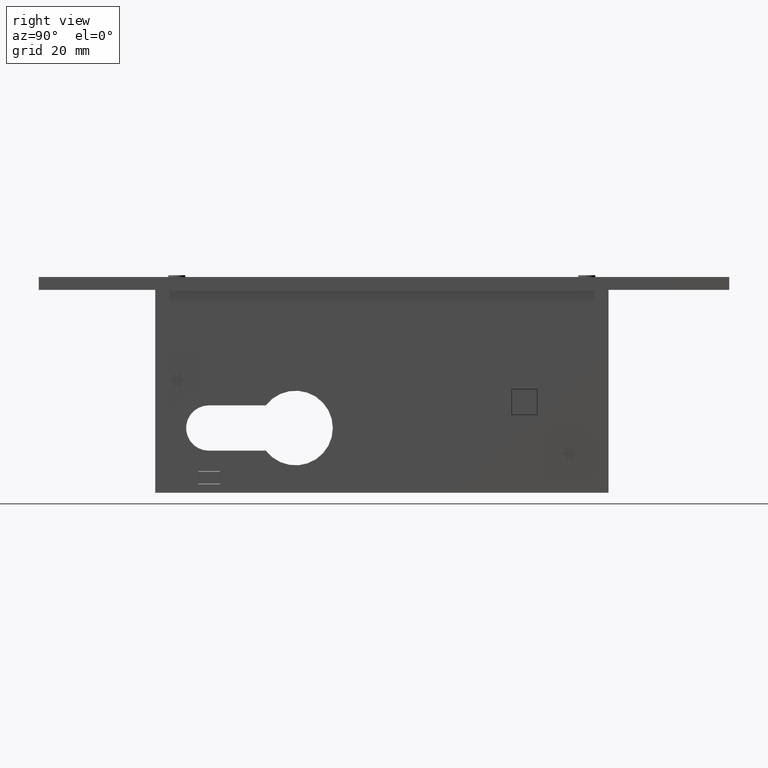
[diagram: clean part render]
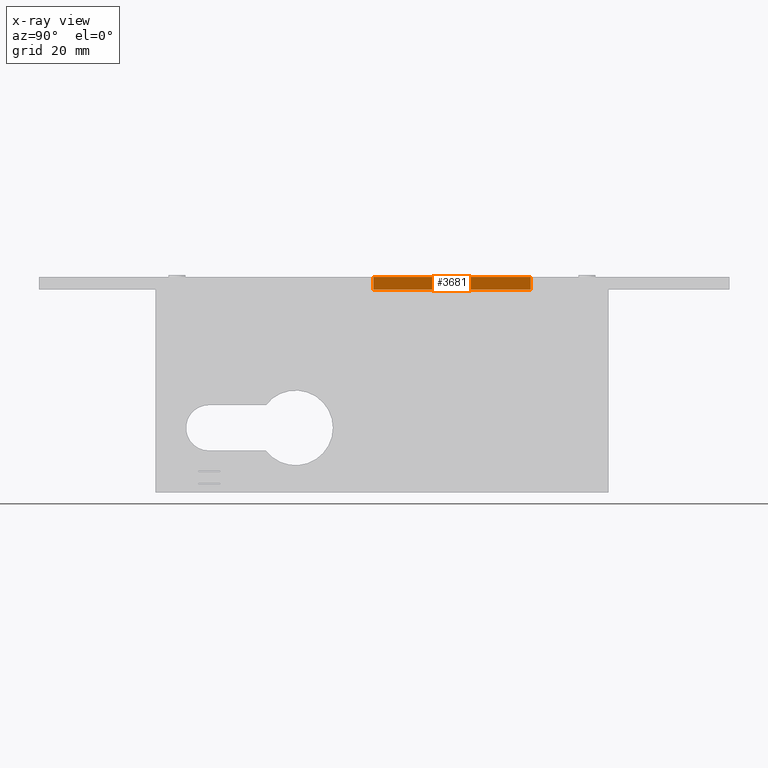
[diagram: x-ray — body ghosted, one internal face saturated and labeled with its STEP entity id]
A machine part, right view, then the same camera in x-ray: the body is ghosted and one INTERNAL B-rep face — a face not visible from any outside direction — is saturated and labeled: STEP entity #3681.
In plain terms, the highlighted planar face has unit normal (1, 0, 0).
Its self-contained STEP definition (entity closure, byte-faithful):
#24 = DIRECTION ( 'NONE',  ( -0.000000000000000000, -0.000000000000000000, 1.000000000000000000 ) ) ;
#698 = FACE_OUTER_BOUND ( 'NONE', #15840, .T. ) ;
#1956 = DIRECTION ( 'NONE',  ( -1.188166764367676342E-16, 1.000000000000000000, 0.000000000000000000 ) ) ;
#2205 = EDGE_CURVE ( 'NONE', #7039, #9274, #14113, .T. ) ;
#2383 = VECTOR ( 'NONE', #3721, 1000.000000000000000 ) ;
#2692 = VERTEX_POINT ( 'NONE', #11416 ) ;
#3263 = VECTOR ( 'NONE', #6493, 1000.000000000000000 ) ;
#3525 = VERTEX_POINT ( 'NONE', #8354 ) ;
#3681 = ADVANCED_FACE ( 'NONE', ( #698 ), #15326, .F. ) ;
#3721 = DIRECTION ( 'NONE',  ( -1.188166764367676342E-16, 1.000000000000000000, -0.000000000000000000 ) ) ;
#4442 = ORIENTED_EDGE ( 'NONE', *, *, #2205, .F. ) ;
#4466 = CARTESIAN_POINT ( 'NONE',  ( 4.999999999999970690, 33.99999999999998579, 3.000000000000000000 ) ) ;
#5079 = CARTESIAN_POINT ( 'NONE',  ( 4.999999999999975131, 5.940833821838352621E-16, 0.000000000000000000 ) ) ;
#5528 = LINE ( 'NONE', #9358, #13434 ) ;
#5637 = ORIENTED_EDGE ( 'NONE', *, *, #12313, .T. ) ;
#5672 = ORIENTED_EDGE ( 'NONE', *, *, #11206, .F. ) ;
#6493 = DIRECTION ( 'NONE',  ( -0.000000000000000000, -0.000000000000000000, 1.000000000000000000 ) ) ;
#7039 = VERTEX_POINT ( 'NONE', #8765 ) ;
#8354 = CARTESIAN_POINT ( 'NONE',  ( 4.999999999999975131, -2.500000000000009326, 0.000000000000000000 ) ) ;
#8765 = CARTESIAN_POINT ( 'NONE',  ( 4.999999999999970690, 33.99999999999998579, 0.000000000000000000 ) ) ;
#9274 = VERTEX_POINT ( 'NONE', #4466 ) ;
#9358 = CARTESIAN_POINT ( 'NONE',  ( 4.999999999999975131, -2.500000000000009326, -47.00000000000000000 ) ) ;
#9523 = DIRECTION ( 'NONE',  ( -1.188166764367676342E-16, 1.000000000000000000, -0.000000000000000000 ) ) ;
#9986 = CARTESIAN_POINT ( 'NONE',  ( 4.999999999999970690, 33.99999999999998579, -47.00000000000000000 ) ) ;
#10466 = LINE ( 'NONE', #5079, #2383 ) ;
#11206 = EDGE_CURVE ( 'NONE', #3525, #7039, #10466, .T. ) ;
#11416 = CARTESIAN_POINT ( 'NONE',  ( 4.999999999999975131, -2.500000000000009326, 3.000000000000000000 ) ) ;
#12121 = CARTESIAN_POINT ( 'NONE',  ( 4.999999999999970690, 33.99999999999998579, 3.000000000000000000 ) ) ;
#12313 = EDGE_CURVE ( 'NONE', #3525, #2692, #5528, .T. ) ;
#12833 = DIRECTION ( 'NONE',  ( 1.000000000000000000, 1.188166764367676342E-16, 0.000000000000000000 ) ) ;
#12995 = EDGE_CURVE ( 'NONE', #2692, #9274, #13402, .T. ) ;
#13402 = LINE ( 'NONE', #12121, #14053 ) ;
#13434 = VECTOR ( 'NONE', #24, 1000.000000000000000 ) ;
#14053 = VECTOR ( 'NONE', #9523, 1000.000000000000000 ) ;
#14113 = LINE ( 'NONE', #14596, #3263 ) ;
#14596 = CARTESIAN_POINT ( 'NONE',  ( 4.999999999999970690, 33.99999999999998579, -47.00000000000000000 ) ) ;
#14618 = ORIENTED_EDGE ( 'NONE', *, *, #12995, .T. ) ;
#14697 = AXIS2_PLACEMENT_3D ( 'NONE', #9986, #12833, #1956 ) ;
#15326 = PLANE ( 'NONE',  #14697 ) ;
#15840 = EDGE_LOOP ( 'NONE', ( #5637, #14618, #4442, #5672 ) ) ;